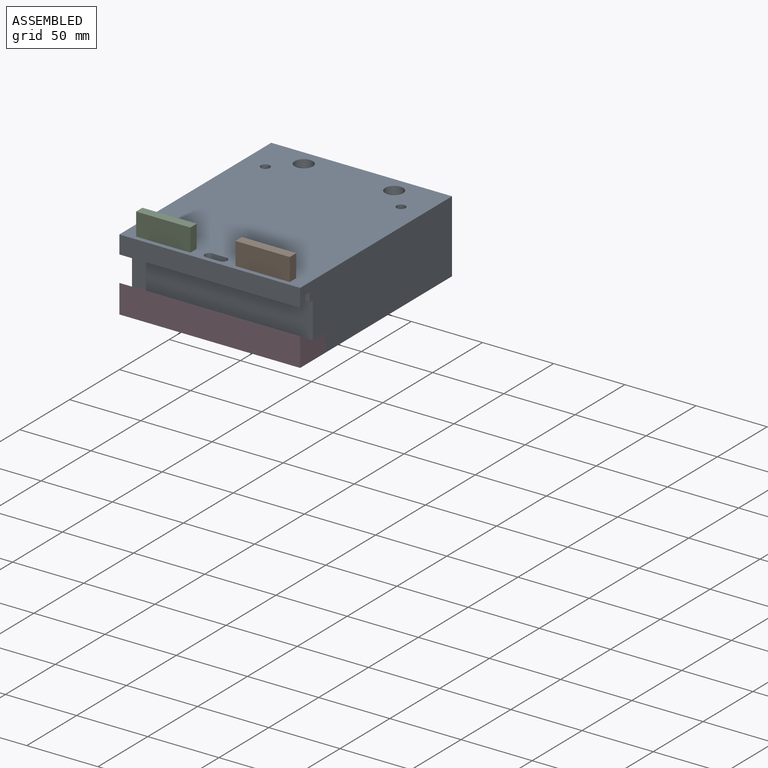
[diagram: assembled view]
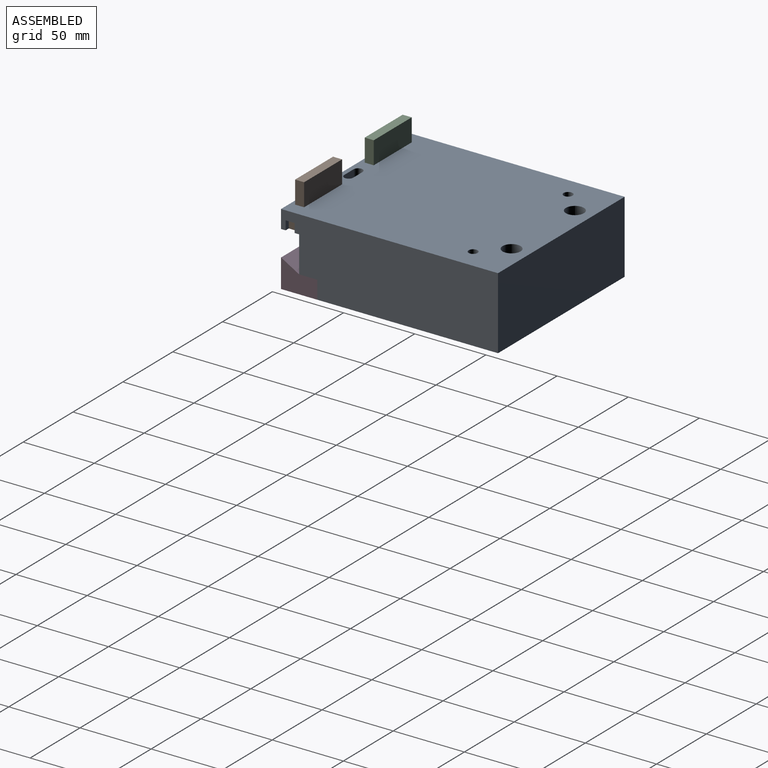
[diagram: assembled view, second angle]
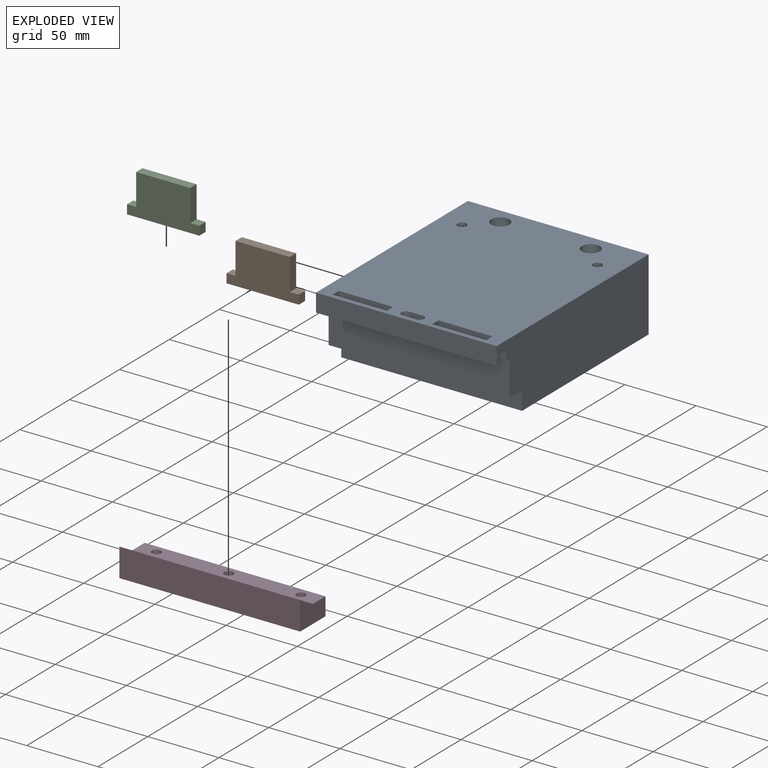
[diagram: exploded view]
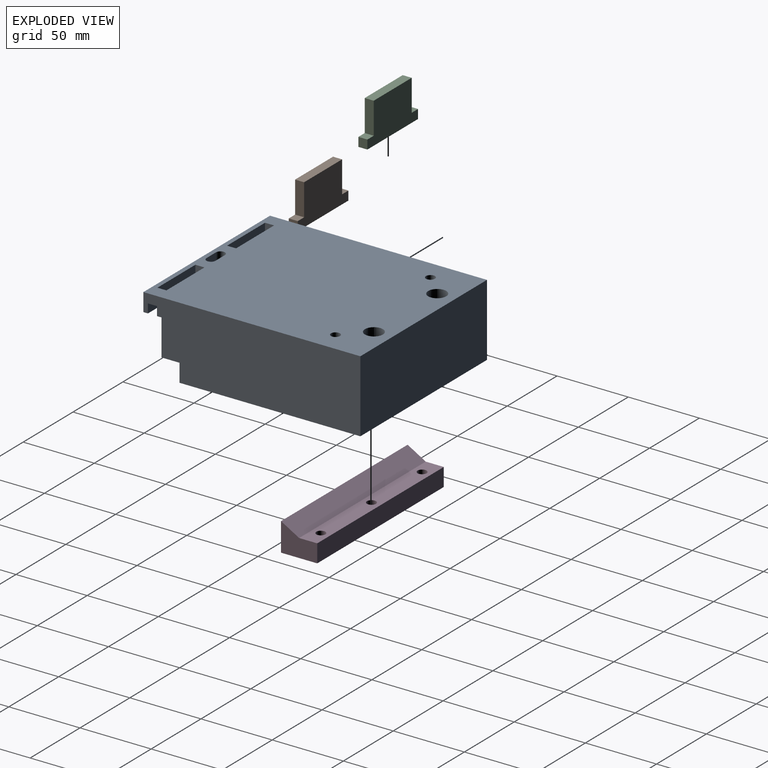
[diagram: exploded view, second angle]
ASSEMBLY  parts=4 mates=3
PART A: 33 faces, bbox 127x152.4x50.8 mm
  f0: plane 11.11x6.35mm, normal (0,0,-1), area 54.7mm2, adj f9,f15,f24,f31
  f1: plane 9.53x6.35mm, normal (0,0,-1), area 60.5mm2, adj f8,f9,f15,f25
  f2: plane 11.11x6.35mm, normal (0,0,-1), area 54.7mm2, adj f9,f15,f26,f32
  f3: plane 152.4x127mm, normal (0,0,1), area 18462.1mm2, adj f5,f6,f7,f8,f9,f15,f23,f24
  f4: plane 127x127mm, normal (0,0,-1), area 15812.3mm2, adj f6,f7,f8,f11,f27,f28,f29,f30
  f5: plane 127x12.7mm, normal (0,-1,0), area 1612.9mm2, adj f3,f6,f8,f10
  f6: plane 152.4x50.8mm, normal (1,0,0), area 7056.4mm2, adj f3,f4,f5,f7,f9,f10,f11,f12
  f7: plane 127x50.8mm, normal (0,1,0), area 6451.6mm2, adj f3,f4,f6,f8
  f8: plane 152.4x50.8mm, normal (-1,0,0), area 7056.4mm2, adj f1,f3,f4,f5,f7,f9,f10,f11
  f9: plane 127x12.7mm, normal (0,1,0), area 1350.8mm2, adj f0,f1,f2,f3,f6,f8,f10,f16
  f10: plane 127x3.18mm, normal (0,0,-1), area 403.2mm2, adj f5,f6,f8,f9
  f11: plane 127x12.7mm, normal (0,-1,0), area 1612.9mm2, adj f4,f6,f8,f12
  f12: plane 127x12.7mm, normal (0,0,-1), area 1517.9mm2, adj f6,f8,f11,f13,f17,f19,f21
  f13: plane 127x25.4mm, normal (0,-1,0), area 3225.8mm2, adj f6,f8,f12,f14
  f14: plane 127x3.18mm, normal (0,0,-1), area 403.2mm2, adj f6,f8,f13,f15
  f15: plane 127x12.7mm, normal (0,-1,0), area 1350.8mm2, adj f0,f1,f2,f3,f6,f8,f14,f16
  f16: plane 9.53x6.35mm, normal (0,0,-1), area 60.5mm2, adj f6,f9,f15,f23
  f17: cylinder r=3.17mm len=12.7mm, axis (0,0,-1), area 253.4mm2, adj f12,f18
  f18: plane 6.35x6.35mm, normal (0,0,-1), area 31.7mm2, adj f17
  f19: cylinder r=3.17mm len=12.7mm, axis (0,0,-1), area 253.4mm2, adj f12,f20
  f20: plane 6.35x6.35mm, normal (0,0,-1), area 31.7mm2, adj f19
  f21: cylinder r=3.17mm len=12.7mm, axis (0,0,-1), area 253.4mm2, adj f12,f22
  f22: plane 6.35x6.35mm, normal (0,0,-1), area 31.7mm2, adj f21
  f23: plane 6.35x6.35mm, normal (-1,0,0), area 40.3mm2, adj f3,f9,f15,f16
  f24: plane 6.35x6.35mm, normal (1,0,0), area 40.3mm2, adj f0,f3,f9,f15
  f25: plane 6.35x6.35mm, normal (1,0,0), area 40.3mm2, adj f1,f3,f9,f15
  f26: plane 6.35x6.35mm, normal (-1,0,0), area 40.3mm2, adj f2,f3,f9,f15
  f27: cylinder r=6.35mm len=50.8mm, axis (0,0,1), area 2026.8mm2, adj f3,f4
  f28: cylinder r=6.35mm len=50.8mm, axis (0,0,1), area 2026.8mm2, adj f3,f4
  f29: cylinder r=3.17mm len=50.8mm, axis (0,0,1), area 1013.4mm2, adj f3,f4
  f30: cylinder r=3.17mm len=50.8mm, axis (0,0,1), area 1013.4mm2, adj f3,f4
  f31: cylinder r=3.17mm len=6.35mm, axis (0,0,1), area 63.3mm2, adj f0,f3,f9,f15
  f32: cylinder r=3.17mm len=6.35mm, axis (0,0,1), area 63.3mm2, adj f2,f3,f9,f15
PART B: 10 faces, bbox 50.8x6.4x28.6 mm
  f0: plane 6.35x6.35mm, normal (-1,0,0), area 40.3mm2, adj f1,f7,f8,f9
  f1: plane 50.8x6.35mm, normal (0,0,-1), area 322.6mm2, adj f0,f2,f8,f9
  f2: plane 6.35x6.35mm, normal (1,0,0), area 40.3mm2, adj f1,f3,f8,f9
  f3: plane 6.35x6.35mm, normal (0,0,1), area 40.3mm2, adj f2,f4,f8,f9
  f4: plane 22.23x6.35mm, normal (1,0,0), area 141.1mm2, adj f3,f5,f8,f9
  f5: plane 38.1x6.35mm, normal (0,0,1), area 241.9mm2, adj f4,f6,f8,f9
  f6: plane 22.23x6.35mm, normal (-1,0,0), area 141.1mm2, adj f5,f7,f8,f9
  f7: plane 6.35x6.35mm, normal (0,0,1), area 40.3mm2, adj f0,f6,f8,f9
  f8: plane 50.8x28.58mm, normal (0,1,0), area 1169.4mm2, adj f0,f1,f2,f3,f4,f5,f6,f7
  f9: plane 50.8x28.58mm, normal (0,-1,0), area 1169.4mm2, adj f0,f1,f2,f3,f4,f5,f6,f7
PART C: same geometry as B
PART D: 10 faces, bbox 127x25.4x20 mm
  f0: plane 127x20.03mm, normal (0,-1,0), area 2544.1mm2, adj f1,f4,f5,f6
  f1: plane 127x25.4mm, normal (0,0,-1), area 3130.8mm2, adj f0,f2,f5,f6,f7,f8,f9
  f2: plane 127x12.7mm, normal (0,1,0), area 1612.9mm2, adj f1,f3,f5,f6
  f3: plane 127x12.7mm, normal (0,0,1), area 1517.9mm2, adj f2,f4,f5,f6,f7,f8,f9
  f4: plane 127x12.7mm, normal (0,0.5,0.87), area 1862.4mm2, adj f0,f3,f5,f6
  f5: plane 25.4x20.03mm, normal (-1,0,0), area 369.1mm2, adj f0,f1,f2,f3,f4
  f6: plane 25.4x20.03mm, normal (1,0,0), area 369.1mm2, adj f0,f1,f2,f3,f4
  f7: cylinder r=3.17mm len=12.7mm, axis (0,0,1), area 253.4mm2, adj f1,f3
  f8: cylinder r=3.17mm len=12.7mm, axis (0,0,1), area 253.4mm2, adj f1,f3
  f9: cylinder r=3.17mm len=12.7mm, axis (0,0,1), area 253.4mm2, adj f1,f3
PLACE A t=(-69.77,-11.96,-30.55)mm
PLACE B t=(-60.24,-84.99,-43.25)mm
PLACE C t=(-130.09,-84.99,-43.25)mm
PLACE D t=(-6.27,-88.16,-81.35)mm
MATE planar D.f3 <-> A.f12  axis (0,0,1) through (-6.27,-62.76,-68.65)mm
MATE planar C.f7 <-> A.f1  axis (0,0,1) through (-123.74,-84.99,-36.9)mm
MATE planar B.f3 <-> A.f16  axis (0,0,1) through (-15.79,-84.99,-36.9)mm
